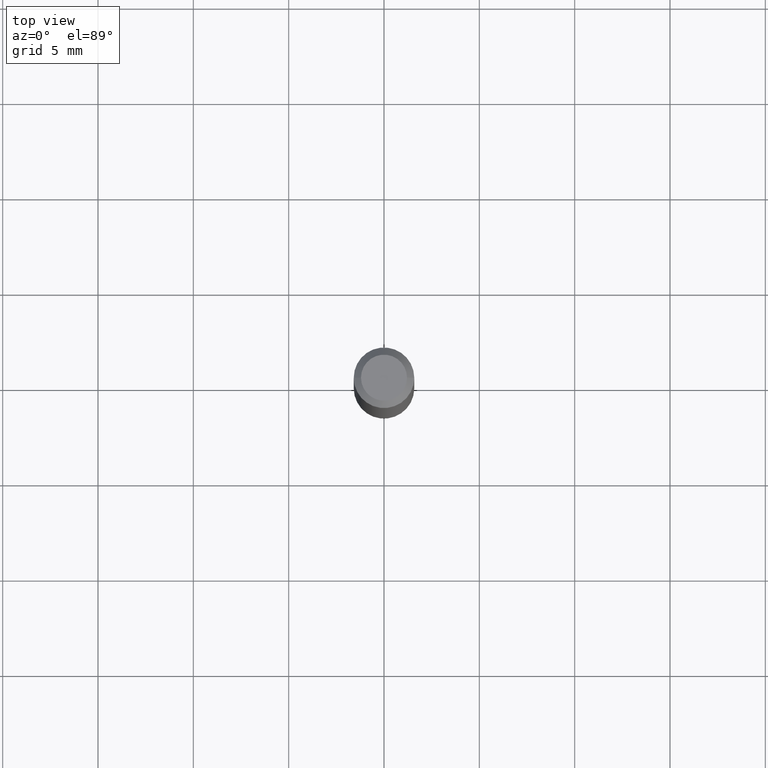
[diagram: clean part render]
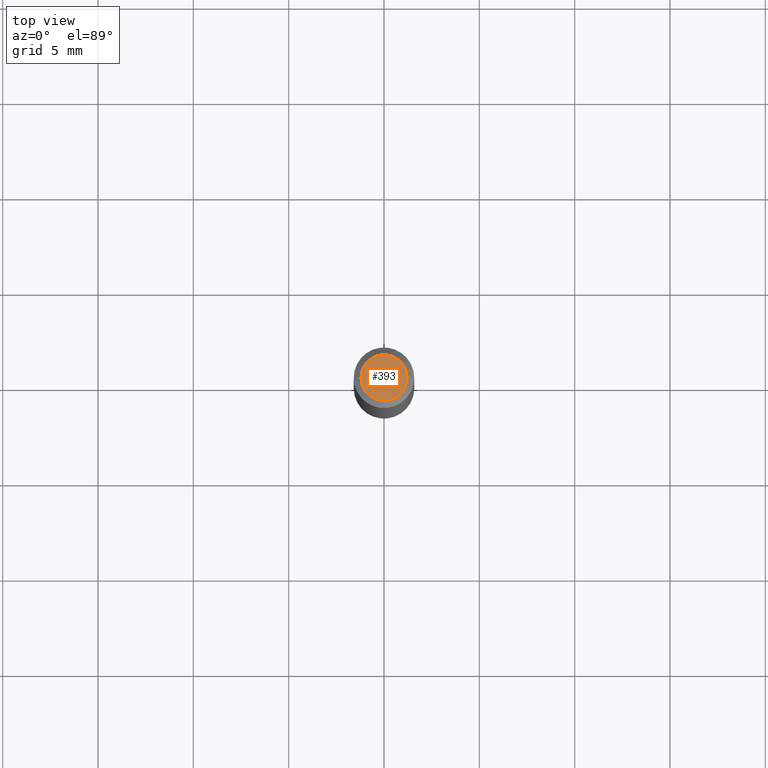
[diagram: same view with one face highlighted and labeled with its STEP entity id]
A machine part, top view. The second image highlights one B-rep face of the part: STEP entity #393.
In plain terms, the highlighted planar face has unit normal (0, -0, -1).
Its self-contained STEP definition (entity closure, byte-faithful):
#2 = CARTESIAN_POINT ( 'NONE',  ( 0.04749999999999999362, -4.035134999187566790E-16, 6.443424916547846258E-16 ) ) ;
#7 = AXIS2_PLACEMENT_3D ( 'NONE', #432, #101, #244 ) ;
#8 = AXIS2_PLACEMENT_3D ( 'NONE', #333, #22, #86 ) ;
#19 = VERTEX_POINT ( 'NONE', #316 ) ;
#21 = ORIENTED_EDGE ( 'NONE', *, *, #188, .T. ) ;
#22 = DIRECTION ( 'NONE',  ( 2.438088387897960049E-29, -3.491481338843145188E-15, -1.000000000000000000 ) ) ;
#28 = EDGE_CURVE ( 'NONE', #19, #367, #149, .T. ) ;
#68 = DIRECTION ( 'NONE',  ( -2.445468806185136597E-29, 3.491481338843145583E-15, 1.000000000000000000 ) ) ;
#79 = EDGE_LOOP ( 'NONE', ( #403, #21 ) ) ;
#86 = DIRECTION ( 'NONE',  ( -1.000000000000000000, 6.982962677686265922E-15, -4.876176775795935793E-29 ) ) ;
#87 = CIRCLE ( 'NONE', #439, 0.04749999999999999362 ) ;
#101 = DIRECTION ( 'NONE',  ( -2.445468806185136597E-29, 3.491481338843145583E-15, 1.000000000000000000 ) ) ;
#149 = CIRCLE ( 'NONE', #7, 0.04749999999999999362 ) ;
#188 = EDGE_CURVE ( 'NONE', #367, #19, #87, .T. ) ;
#218 = DIRECTION ( 'NONE',  ( 1.000000000000000000, -6.982962677686267499E-15, 4.852736867747366768E-29 ) ) ;
#244 = DIRECTION ( 'NONE',  ( 1.000000000000000000, -6.982962677686267499E-15, 4.852736867747366768E-29 ) ) ;
#257 = CARTESIAN_POINT ( 'NONE',  ( -1.575719463841376315E-44, 2.249709785436367094E-30, 6.443424916547820620E-16 ) ) ;
#271 = PLANE ( 'NONE',  #8 ) ;
#291 = FACE_OUTER_BOUND ( 'NONE', #79, .T. ) ;
#316 = CARTESIAN_POINT ( 'NONE',  ( -0.04749999999999999362, 3.578768372314221846E-16, 6.443424916547796954E-16 ) ) ;
#333 = CARTESIAN_POINT ( 'NONE',  ( 3.316907271900976096E-16, 0.04749999999999999362, 1.563258822323416346E-16 ) ) ;
#367 = VERTEX_POINT ( 'NONE', #2 ) ;
#393 = ADVANCED_FACE ( 'NONE', ( #291 ), #271, .F. ) ;
#403 = ORIENTED_EDGE ( 'NONE', *, *, #28, .T. ) ;
#432 = CARTESIAN_POINT ( 'NONE',  ( -1.575719463841376315E-44, 2.249709785436367094E-30, 6.443424916547820620E-16 ) ) ;
#439 = AXIS2_PLACEMENT_3D ( 'NONE', #257, #68, #218 ) ;